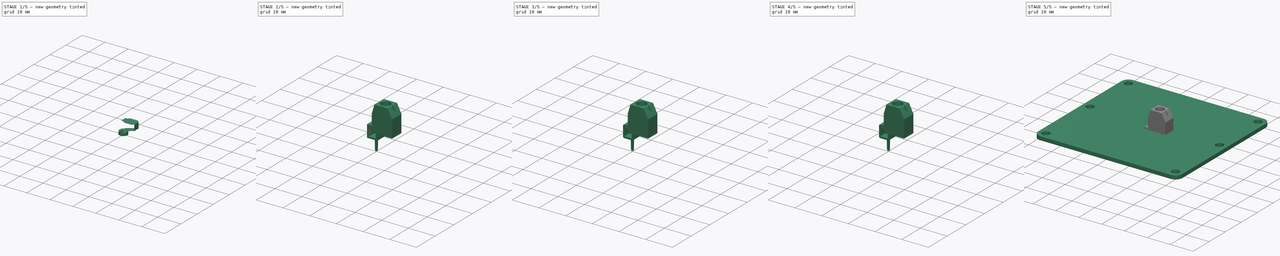
[diagram: build sequence overview — one tinted view per stage of 5, left to right]
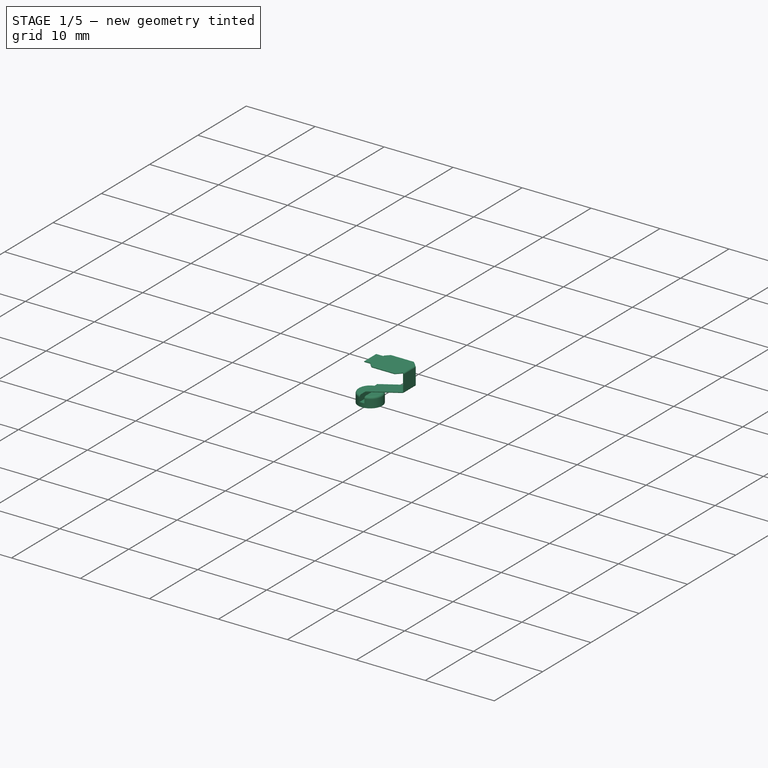
[diagram: stage 1 of 5 — iso view after this stage's code; geometry added in this stage tinted green]
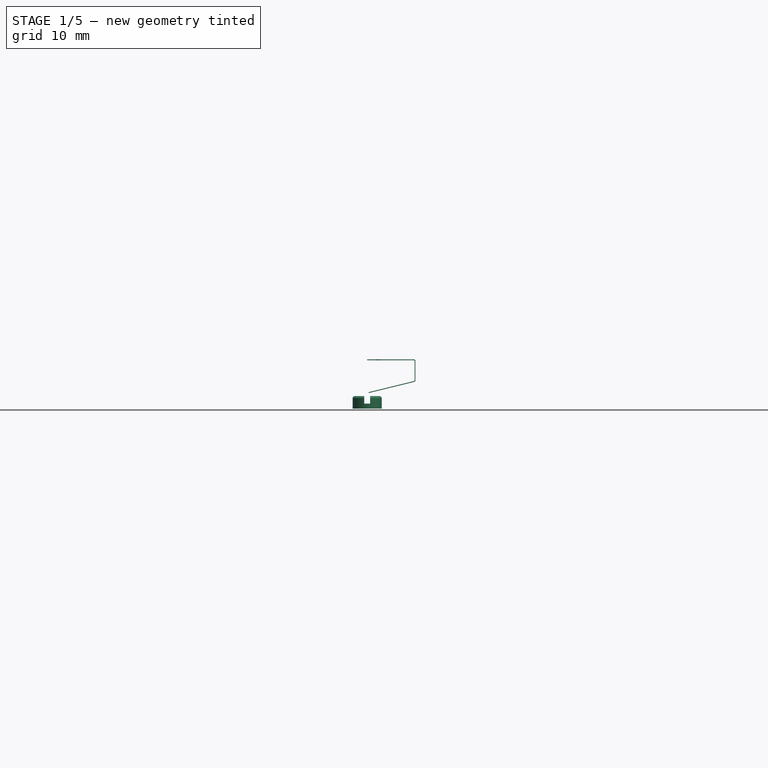
[diagram: stage 1 of 5 — front view after this stage's code; geometry added in this stage tinted green]
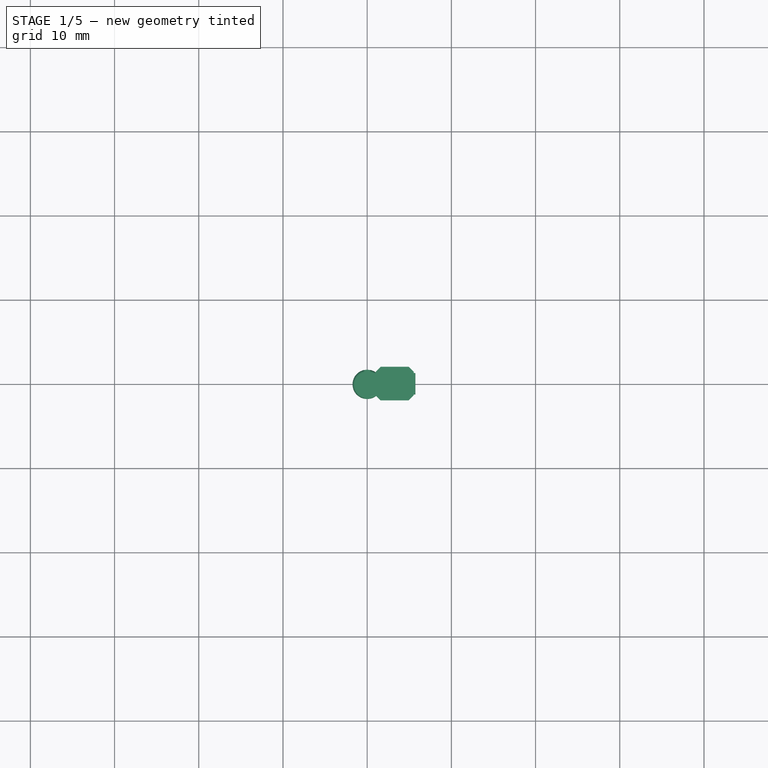
[diagram: stage 1 of 5 — top view after this stage's code; geometry added in this stage tinted green]
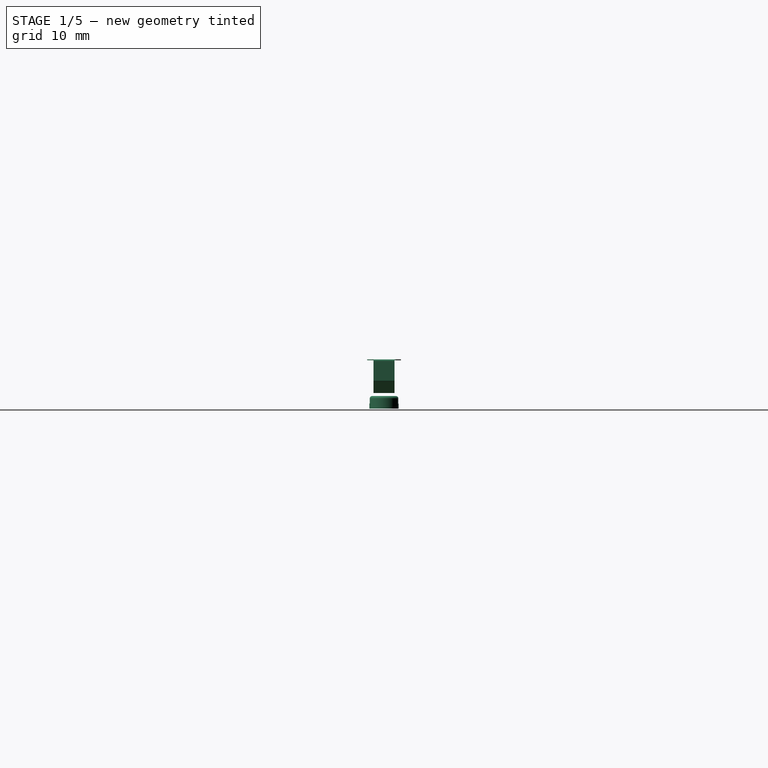
[diagram: stage 1 of 5 — right view after this stage's code; geometry added in this stage tinted green]
FCSTD DOCUMENT  (FreeCAD 0.22R37898 (Git))
Label: MKS ODrive Mini
License: All rights reserved
LicenseURL: http://en.wikipedia.org/wiki/All_rights_reserved
objects: Part::Feature×27, Sketcher::SketchObject×20, App::Part×10, PartDesign::Pad×9, PartDesign::Pocket×8, PartDesign::Fillet×8, PartDesign::Body×7, Part::FeaturePython×6, PartDesign::Draft×2, Part::Chamfer×2, PartDesign::Hole×1
note: 118 computed .brp shape members not serialized (recipe doc carries the construction recipe); baked Part::Feature solids carry a one-line shape summary decoded from their .brp

FEATURE [PartDesign::Body] Body005  label="Leg001"
  AllowCompound = false
  Group = -> [Sketch016,Pad005,Sketch019,Pad006,Draft001,Fillet004,Fillet005,Fillet006]
  Origin = -> Origin008
  Placement = pos=(3.2,-1e-15,3.3) rot=(0,0,-1;1.5708rad)
  Tip = -> Fillet006
FEATURE [Part::FeaturePython] BaseBend001  label="Spring002"  # WARN: FeaturePython — macro-defined, semantics opaque (R4)
  BendSide = 2
  BendSketch = -> Sketch013
  Placement = pos=(0,-1.25,5.8) rot=(0,0,1;0rad)
  length = 2.5
  radius = 0.1
  thickness = 0.1
FEATURE [Part::FeaturePython] Extend003  # WARN: FeaturePython — macro-defined, semantics opaque (R4)
  baseObject = -> BaseBend001 [Edge42]
  gap1 = 1
  gap2 = 0
  length = 0.75
FEATURE [Part::FeaturePython] Extend002  # WARN: FeaturePython — macro-defined, semantics opaque (R4)
  baseObject = -> Extend003 [Edge21]
  gap1 = 1
  gap2 = 0
  length = 0.75
FEATURE [Part::Chamfer] Chamfer001
  Base = -> Extend002
  EdgeLinks = -> Extend002 [Edge2,Edge8,Edge39,Edge45]
  Edges = 4 edges r=0.6: [Edge2,Edge8,Edge39,Edge45]
FEATURE [App::Part] Part004
  Group = -> [Sketch013,BaseBend001,Extend003,Extend002,Chamfer001]
  Origin = -> Origin011
  Placement = pos=(6,-7e-16,0) rot=(0,0,1;3.14159rad)
FEATURE [PartDesign::Pad] Pad008
  AllowMultiFace = false
  Direction = (1,1,1)
  Length = 1.5
  Length2 = 100
  Profile = -> Sketch017
  Refine = true
  Suppressed = false
  Type = 0
FEATURE [Sketcher::SketchObject] Sketch018  label="Sketch017"
  AttachmentSupport = -> [Pad008]
  FullyConstrained = false
  MapMode = 5
  Placement = pos=(0,0,1.5) rot=(0,0,1;0rad)
  sketch-geometry (4):
    g0: LineSegment StartX=-0.35 StartY=2 StartZ=0 EndX=0.35 EndY=2 EndZ=0
    g1: LineSegment StartX=0.35 StartY=2 StartZ=0 EndX=0.35 EndY=-2 EndZ=0
    g2: LineSegment StartX=0.35 StartY=-2 StartZ=0 EndX=-0.35 EndY=-2 EndZ=0
    g3: LineSegment StartX=-0.35 StartY=-2 StartZ=0 EndX=-0.35 EndY=2 EndZ=0
  constraints (11):
    c: Coincident(g0,g1)
    c: Coincident(g1,g2)
    c: Coincident(g2,g3)
    c: Coincident(g3,g0)
    c: Horizontal(g0)
    c: Horizontal(g2)
    c: Vertical(g1)
    c: Vertical(g3)
    c: Symmetric(g1,g0,g-1)
    c: DistanceX(g0,g0) = 0.7
    c: DistanceY(g1,g1) = 4
FEATURE [PartDesign::Pocket] Pocket007
  AllowMultiFace = false
  BaseFeature = -> Pad008
  Direction = (1,1,1)
  Length = 0.9
  Length2 = 100
  Profile = -> Sketch018
  Refine = true
  Suppressed = false
  Type = 0
FEATURE [PartDesign::Fillet] Fillet007
  Base = -> Pocket007 [Edge3,Edge7]
  BaseFeature = -> Pocket007
  Radius = 0.3
  SupportTransform = false
  Suppressed = false
  UseAllEdges = false
FEATURE [PartDesign::Body] Body006  label="Cap001"
  AllowCompound = false
  Group = -> [Sketch017,Pad008,Sketch018,Pocket007,Fillet007]
  Origin = -> Origin010
  Placement = pos=(3.47752,0,6.9297) rot=(0,0,1;0rad)
  Tip = -> Fillet007
FEATURE [App::Part] Part003  label="Teminal Block 1 pin001"
  Group = -> [Body004,Body005,Body006,Part004]
  Origin = -> Origin007
  Placement = pos=(1e-15,5,0) rot=(0,0,1;3.14159rad)
FEATURE [App::Part] Part002  label="Terminal block 2 pin"
  Group = -> [Part,Part003]
  Origin = -> Origin006
  Placement = pos=(-23.5,16,0) rot=(0,0,1;0rad)
FEATURE [Part::Feature] Part__Feature  label="Body"
  shape: bbox 12.7 x 19.5 x 21 mm, 80 faces (baked)
FEATURE [Part::Feature] Part__Feature001  label="Screw"
  Placement = pos=(38.4582,6.44094,17) rot=(0,0,1;0rad)
  shape: bbox 4.5 x 4.5 x 1 mm, 7 faces (baked)
FEATURE [Part::Feature] Part__Feature002  label="Screw001"
  Placement = pos=(38.4582,15.9409,17) rot=(0,0,1;0rad)
  shape: bbox 4.5 x 4.5 x 1 mm, 7 faces (baked)
FEATURE [Part::Feature] Part__Feature003  label="Block"
  Placement = pos=(-6,-20.4,6) rot=(0,0,1;0rad)
  shape: bbox 4 x 4 x 2 mm, 6 faces (baked)
FEATURE [Part::Feature] Part__Feature004  label="Block001"
  Placement = pos=(-5.8,-30.4,6) rot=(0,0,1;0rad)
  shape: bbox 4 x 4 x 2 mm, 6 faces (baked)
FEATURE [Part::Feature] Part__Feature005  label="T003"
  Placement = pos=(7.1,-5.35,-4.5) rot=(0,0,1;0rad)
  shape: bbox 0.8 x 1 x 5.5 mm, 10 faces (baked)
FEATURE [Part::Feature] Part__Feature006  label="T004"
  Placement = pos=(7.1,-14.85,-4.5) rot=(0,0,1;0rad)
  shape: bbox 0.8 x 1 x 5.5 mm, 10 faces (baked)
FEATURE [App::Part] BR1102V
  Group = -> [Part__Feature,Part__Feature001,Part__Feature002,Part__Feature003,Part__Feature004,Part__Feature005,Part__Feature006]
  Origin = -> Origin012
  Placement = pos=(0,0,0) rot=(0.57735,-0.57735,-0.57735;4.18879rad)
FEATURE [App::Part] BR11
  Group = -> [BR1102V]
  Origin = -> Origin013
  Placement = pos=(25.5,29,6.4e-15) rot=(0,-0.707107,-0.707107;3.14159rad)
FEATURE [Part::Feature] Part__Feature007  label="Body009"
  shape: bbox 12.7 x 29.1 x 21 mm, 104 faces (baked)
FEATURE [Part::Feature] Part__Feature008  label="Screw002"
  Placement = pos=(38.2582,6.39094,17) rot=(0,0,1;0rad)
  shape: bbox 4.5 x 4.5 x 1 mm, 7 faces (baked)
FEATURE [Part::Feature] Part__Feature009  label="Screw003"
  Placement = pos=(38.2582,15.8909,17) rot=(0,0,1;0rad)
  shape: bbox 4.5 x 4.5 x 1 mm, 7 faces (baked)
FEATURE [Part::Feature] Part__Feature010  label="Block002"
  Placement = pos=(-6,-20.4,6) rot=(0,0,1;0rad)
  shape: bbox 4 x 4 x 2 mm, 6 faces (baked)
FEATURE [Part::Feature] Part__Feature011  label="Block003"
  Placement = pos=(-5.8,-30.4,6) rot=(0,0,1;0rad)
  shape: bbox 4 x 4 x 2 mm, 6 faces (baked)
FEATURE [Part::Feature] Part__Feature012  label="T005"
  Placement = pos=(7.1,-5.35,-4.5) rot=(0,0,1;0rad)
  shape: bbox 0.8 x 1 x 5.5 mm, 10 faces (baked)
FEATURE [Part::Feature] Part__Feature013  label="T006"
  Placement = pos=(7.1,-14.85,-4.5) rot=(0,0,1;0rad)
  shape: bbox 0.8 x 1 x 5.5 mm, 10 faces (baked)
FEATURE [Part::Feature] Part__Feature014  label="Screw004"
  Placement = pos=(38.2582,-3.10906,17) rot=(0,0,1;0rad)
  shape: bbox 4.5 x 4.5 x 1 mm, 7 faces (baked)
FEATURE [Part::Feature] Part__Feature015  label="Body017"
  Placement = pos=(0,-9.5,0) rot=(0,0,1;0rad)
  shape: bbox 4 x 4 x 2 mm, 6 faces (baked)
FEATURE [Part::Feature] Part__Feature016  label="Body018"
  Placement = pos=(0,-9.5,0) rot=(0,0,1;0rad)
  shape: bbox 0.8 x 1 x 5.5 mm, 10 faces (baked)
FEATURE [App::Part] BR1103V
  Group = -> [Part__Feature007,Part__Feature008,Part__Feature009,Part__Feature010,Part__Feature011,Part__Feature012,Part__Feature013,Part__Feature014,Part__Feature015,Part__Feature016]
  Origin = -> Origin014
  Placement = pos=(19,0,0) rot=(0.57735,-0.57735,-0.57735;4.18879rad)
FEATURE [App::Part] BR012
  Group = -> [BR1103V]
  Origin = -> Origin015
  Placement = pos=(25.5,29,-6.4e-15) rot=(0,0.707107,0.707107;3.14159rad)
FEATURE [Part::Feature] Part__Feature020  label="220uF 50V001"
  Placement = pos=(-23,-4,1.5) rot=(0,0,1;4.71239rad)
  shape: bbox 15.87 x 10.73 x 10.51 mm, 145 faces (baked)
FEATURE [Part::Feature] Part__Feature021  label="220uF 50V002"
  Placement = pos=(-11.5,-4,1.5) rot=(0,0,1;4.71239rad)
  shape: bbox 15.87 x 10.73 x 10.51 mm, 145 faces (baked)
FEATURE [Part::Feature] Part__Feature022  label="220uF 50V003"
  Placement = pos=(0,-4,1.5) rot=(0,0,1;4.71239rad)
  shape: bbox 15.87 x 10.73 x 10.51 mm, 145 faces (baked)
FEATURE [Part::Feature] Part__Feature023  label="220uF 50V004"
  Placement = pos=(11.5,-4,1.5) rot=(0,0,1;4.71239rad)
  shape: bbox 15.87 x 10.73 x 10.51 mm, 145 faces (baked)
FEATURE [Part::Feature] Part__Feature024  label="220uF 50V005"
  Placement = pos=(23,-4,1.5) rot=(0,0,1;4.71239rad)
  shape: bbox 15.87 x 10.73 x 10.51 mm, 145 faces (baked)
FEATURE [Part::Feature] Part__Feature027  label="SM05B-GHS-TB"
  Placement = pos=(-16,-24.5,3.5) rot=(0,0,-1;3.14159rad)
  shape: bbox 9.5 x 4.3 x 4.85 mm, 244 faces, 8 solids (baked)
FEATURE [Part::Feature] Part__Feature028  label="SM05B-GHS-TB001"
  Placement = pos=(-4.5,-24.5,3.5) rot=(0,0,-1;3.14159rad)
  shape: bbox 9.5 x 4.3 x 4.85 mm, 244 faces, 8 solids (baked)
FEATURE [Part::Feature] Part__Feature029  label="SM06B-GHS-TB"
  Placement = pos=(8,-24.5,3.5) rot=(0,0,1;3.14159rad)
  shape: bbox 10.75 x 4.3 x 4.85 mm, 276 faces, 9 solids (baked)
FEATURE [Part::Feature] Part__Feature030  label="SM06B-GHS-TB001"
  Placement = pos=(20.5,-24.5,3.5) rot=(0,0,1;3.14159rad)
  shape: bbox 10.75 x 4.3 x 4.85 mm, 276 faces, 9 solids (baked)
FEATURE [Part::Feature] Part__Feature031  label="SM02B-GHS-TB"
  Placement = pos=(-27,-19,3.5) rot=(0,0,1;1.5708rad)
  shape: bbox 4.3 x 5.75 x 4.85 mm, 148 faces, 5 solids (baked)
FEATURE [App::Part] Part005  label="XDrive Mini"
  Group = -> [Part__Feature031,Part__Feature029,Part__Feature027,Part__Feature020,BR11,Part__Feature028,Part__Feature021,Part__Feature022,BR012,Part__Feature030,Part__Feature023,Part002,Body,Part__Feature024]
  Origin = -> Origin016
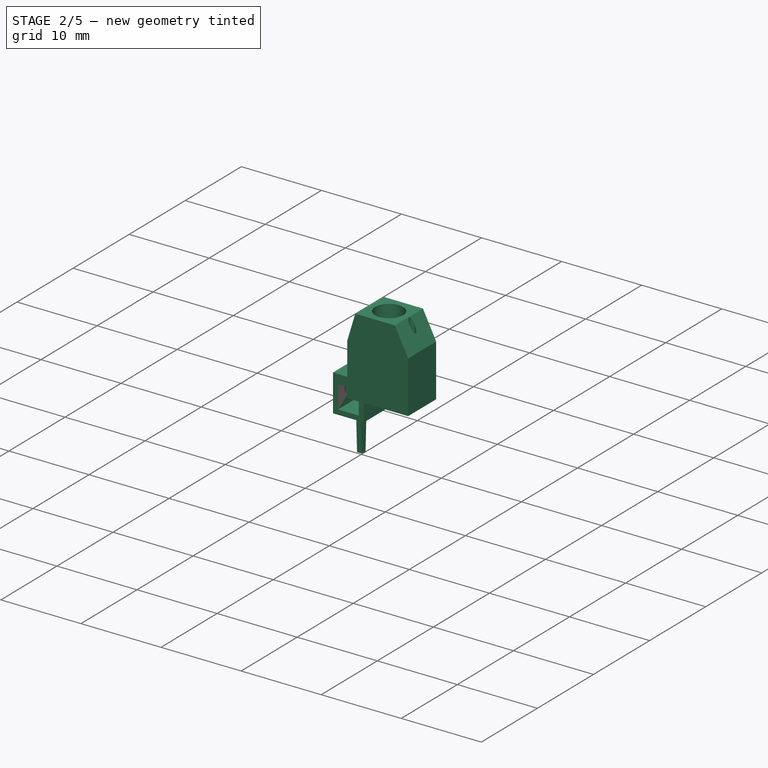
[diagram: stage 2 of 5 — iso view after this stage's code; geometry added in this stage tinted green]
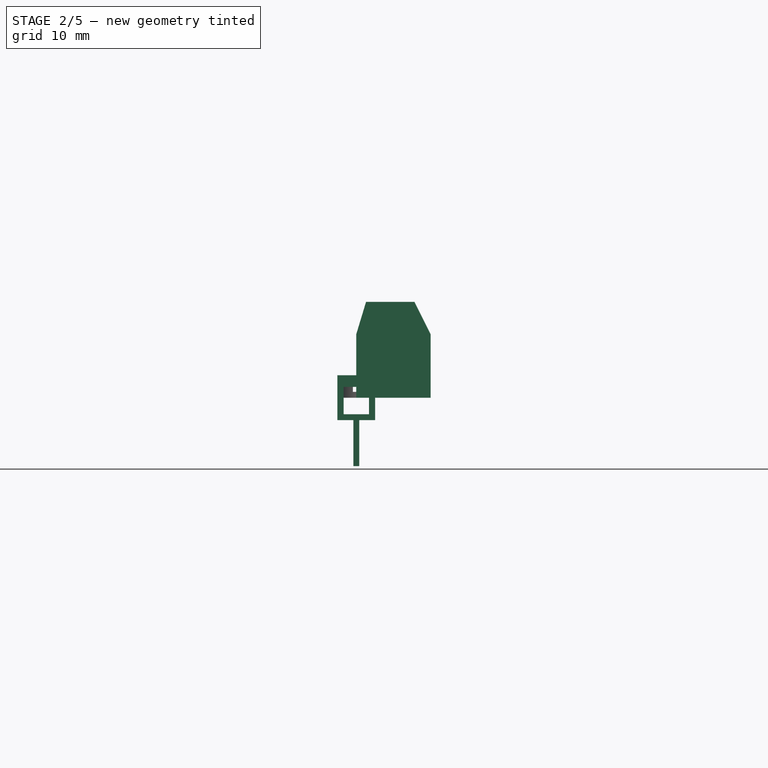
[diagram: stage 2 of 5 — front view after this stage's code; geometry added in this stage tinted green]
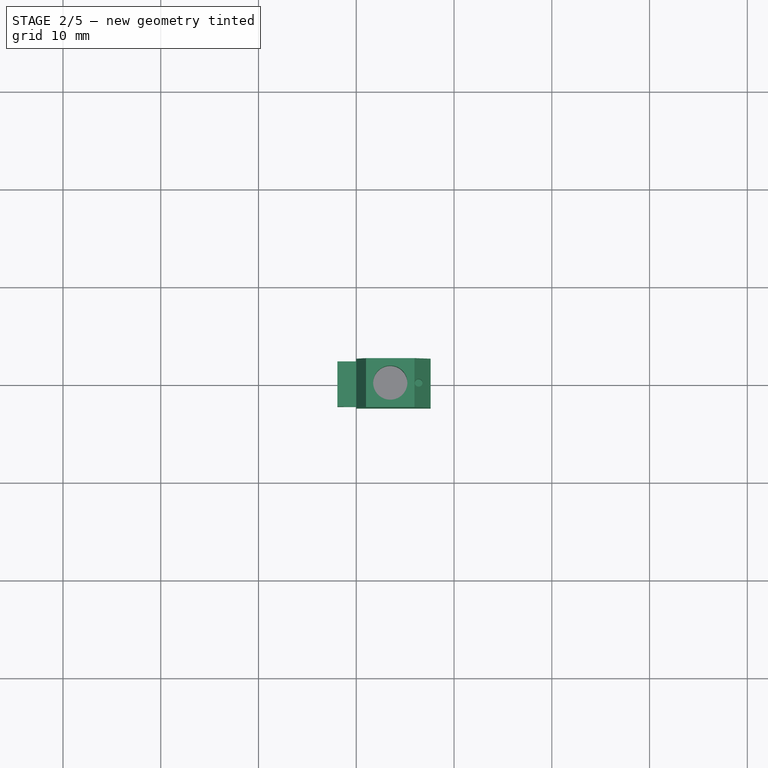
[diagram: stage 2 of 5 — top view after this stage's code; geometry added in this stage tinted green]
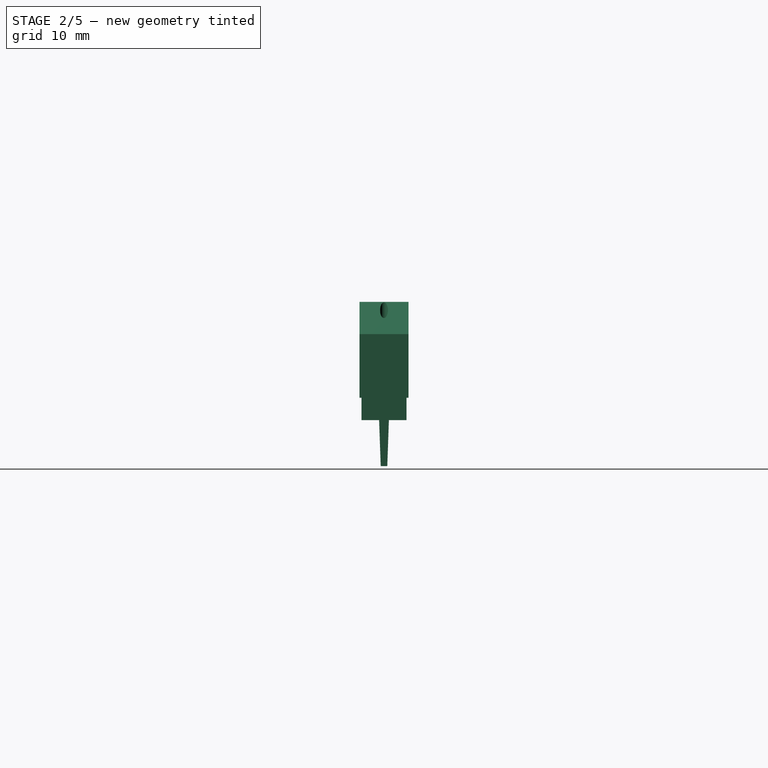
[diagram: stage 2 of 5 — right view after this stage's code; geometry added in this stage tinted green]
FEATURE [PartDesign::Body] Body003  label="Cap"
  AllowCompound = false
  Group = -> [Sketch009,Pad004,Sketch010,Pocket003,Fillet003]
  Origin = -> Origin004
  Placement = pos=(3.47752,0,6.9297) rot=(0,0,1;0rad)
  Tip = -> Fillet003
FEATURE [App::Part] Part  label="Teminal Block 1 pin"
  Group = -> [Body001,Body002,Body003,Part001]
  Origin = -> Origin001
  Placement = pos=(0,0,0) rot=(0,0,1;3.14159rad)
FEATURE [Sketcher::SketchObject] Sketch013  label="Sketch012"
  FullyConstrained = false
  MapMode = 5
  Placement = pos=(0,0,0) rot=(1,0,0;1.5708rad)
  sketch-geometry (3):
    g0: LineSegment StartX=0 StartY=0 StartZ=0 EndX=5.68 EndY=0 EndZ=0
    g1: LineSegment StartX=5.68 StartY=0 StartZ=0 EndX=5.68 EndY=-2.55 EndZ=0
    g2: LineSegment StartX=5.68 StartY=-2.55 StartZ=0 EndX=0.162763 EndY=-3.9 EndZ=0
  constraints (9):
    c: Coincident(g0,g-1)
    c: PointOnObject(g0,g-1)
    c: Coincident(g0,g1)
    c: Vertical(g1)
    c: Coincident(g1,g2)
    c: DistanceX(g0,g0) = 5.68
    c: DistanceY(g1,g1) = 2.55
    c: Distance(g2) = 5.68
    c: DistanceY(g2,g0) = 3.9
FEATURE [Sketcher::SketchObject] Sketch014  label="Sketch013"
  AttachmentSupport = -> [XZ_Plane008]
  FullyConstrained = false
  MapMode = 5
  Placement = pos=(0,0,0) rot=(1,0,0;1.5708rad)
  sketch-geometry (6):
    g0: LineSegment StartX=0 StartY=0 StartZ=0 EndX=7.6 EndY=0 EndZ=0
    g1: LineSegment StartX=7.6 StartY=0 StartZ=0 EndX=7.6 EndY=6.5 EndZ=0
    g2: LineSegment StartX=0 StartY=6.5 StartZ=0 EndX=0 EndY=0 EndZ=0
    g3: LineSegment StartX=7.6 StartY=6.5 StartZ=0 EndX=5.95 EndY=9.8 EndZ=0
    g4: LineSegment StartX=5.95 StartY=9.8 StartZ=0 EndX=1 EndY=9.8 EndZ=0
    g5: LineSegment StartX=1 StartY=9.8 StartZ=0 EndX=0 EndY=6.5 EndZ=0
  constraints (17):
    c: Coincident(g0,g1)
    c: Coincident(g2,g0)
    c: Horizontal(g0)
    c: Vertical(g1)
    c: Vertical(g2)
    c: Coincident(g0,g-1)
    c: DistanceX(g0,g0) = 7.6
    c: Coincident(g1,g3)
    c: Coincident(g3,g4)
    c: Coincident(g4,g5)
    c: Coincident(g5,g2)
    c: Horizontal(g4)
    c: Equal(g2,g1)
    c: DistanceY(g2,g2) = 6.5
    c: DistanceY(g2,g4) = 3.3
    c: DistanceX(g4,g4) = 4.95
    c: DistanceX(g2,g4) = 1
FEATURE [PartDesign::Pad] Pad007
  AllowMultiFace = false
  Direction = (1,1,1)
  Length = 5
  Length2 = 100
  Midplane = true
  Placement = pos=(0,0,0) rot=(1,0,0;1.5708rad)
  Profile = -> Sketch014
  Refine = true
  Suppressed = false
  Type = 0
FEATURE [Sketcher::SketchObject] Sketch015  label="Sketch014"
  AttachmentSupport = -> [Pad007]
  FullyConstrained = false
  MapMode = 5
  Placement = pos=(0,0,0) rot=(0.707107,0,-0.707107;3.14159rad)
  sketch-geometry (4):
    g0: LineSegment StartX=-1 StartY=0.5 StartZ=0 EndX=0 EndY=0.5 EndZ=0
    g1: LineSegment StartX=0 StartY=0.5 StartZ=0 EndX=0 EndY=-0.5 EndZ=0
    g2: LineSegment StartX=0 StartY=-0.5 StartZ=0 EndX=-1 EndY=-0.5 EndZ=0
    g3: LineSegment StartX=-1 StartY=-0.5 StartZ=0 EndX=-1 EndY=0.5 EndZ=0
  constraints (11):
    c: Coincident(g0,g1)
    c: Coincident(g1,g2)
    c: Coincident(g2,g3)
    c: Coincident(g3,g0)
    c: Horizontal(g0)
    c: Horizontal(g2)
    c: Vertical(g1)
    c: Vertical(g3)
    c: Symmetric(g0,g1,g-1)
    c: DistanceY(g1,g1) = 1
    c: DistanceX(g0,g0) = 1
FEATURE [PartDesign::Pocket] Pocket004
  AllowMultiFace = false
  BaseFeature = -> Pad007
  Direction = (1,1,1)
  Length = 3.75
  Length2 = 100
  Placement = pos=(0,0,0) rot=(1,0,0;1.5708rad)
  Profile = -> Sketch015
  Refine = true
  Suppressed = false
  Type = 0
FEATURE [Sketcher::SketchObject] Sketch011  label="Sketch010"
  AttachmentSupport = -> [Pocket004]
  ExternalGeometry = -> [Pocket004]
  FullyConstrained = false
  MapMode = 5
  Placement = pos=(0,0,0) rot=(0.707107,0,-0.707107;3.14159rad)
  sketch-geometry (4):
    g0: LineSegment StartX=-5.87 StartY=2 StartZ=0 EndX=-1 EndY=2 EndZ=0
    g1: LineSegment StartX=-1 StartY=2 StartZ=0 EndX=-1 EndY=-2 EndZ=0
    g2: LineSegment StartX=-1 StartY=-2 StartZ=0 EndX=-5.87 EndY=-2 EndZ=0
    g3: LineSegment StartX=-5.87 StartY=-2 StartZ=0 EndX=-5.87 EndY=2 EndZ=0
  constraints (11):
    c: Coincident(g0,g1)
    c: Coincident(g1,g2)
    c: Coincident(g2,g3)
    c: Coincident(g3,g0)
    c: Horizontal(g0)
    c: Horizontal(g2)
    c: Vertical(g3)
    c: Vertical(g-3,g0)
    c: Symmetric(g1,g0,g-1)
    c: DistanceY(g3,g3) = 4
    c: DistanceX(g0,g0) = 4.87
FEATURE [PartDesign::Pocket] Pocket005
  AllowMultiFace = false
  BaseFeature = -> Pocket004
  Direction = (1,1,1)
  Length = 6.8
  Length2 = 100
  Placement = pos=(0,0,0) rot=(1,0,0;1.5708rad)
  Profile = -> Sketch011
  Refine = true
  Suppressed = false
  Type = 0
FEATURE [Sketcher::SketchObject] Sketch012  label="Sketch011"
  AttachmentSupport = -> [Pocket005]
  ExternalGeometry = -> [Pocket005]
  FullyConstrained = false
  MapMode = 5
  Placement = pos=(0,4.3e-15,9.8) rot=(0,0,1;3.14159rad)
  sketch-geometry (2):
    g0: Circle CenterX=-3.475 CenterY=0 CenterZ=0 NormalX=0 NormalY=0 NormalZ=1 AngleXU=0 Radius=1.75
    g1: Circle CenterX=-6.375 CenterY=0 CenterZ=0 NormalX=0 NormalY=0 NormalZ=1 AngleXU=0 Radius=0.4
  constraints (5):
    c: Radius(g0) = 1.75
    c: Symmetric(g-3,g-4,g0)
    c: PointOnObject(g1,g-1)
    c: DistanceX(g1,g0) = 2.9
    c: Radius(g1) = 0.4
FEATURE [PartDesign::Pocket] Pocket006
  AllowMultiFace = false
  BaseFeature = -> Pocket005
  Direction = (1,1,1)
  Length = 5
  Length2 = 100
  Placement = pos=(0,0,0) rot=(1,0,0;1.5708rad)
  Profile = -> Sketch012
  Refine = true
  Suppressed = false
  Type = 0
FEATURE [PartDesign::Body] Body004  label="Case001"
  AllowCompound = false
  Group = -> [Sketch014,Pad007,Sketch015,Pocket004,Sketch011,Pocket005,Sketch012,Pocket006]
  Origin = -> Origin009
  Tip = -> Pocket006
FEATURE [Sketcher::SketchObject] Sketch016  label="Sketch015"
  AttachmentSupport = -> [XZ_Plane007]
  FullyConstrained = false
  MapMode = 5
  Placement = pos=(0,0,0) rot=(1,0,0;1.5708rad)
  sketch-geometry (8):
    g0: LineSegment StartX=-1.3 StartY=1.1 StartZ=0 EndX=1.3 EndY=1.1 EndZ=0
    g1: LineSegment StartX=1.3 StartY=1.1 StartZ=0 EndX=1.3 EndY=-1.7 EndZ=0
    g2: LineSegment StartX=1.3 StartY=-1.7 StartZ=0 EndX=-1.3 EndY=-1.7 EndZ=0
    g3: LineSegment StartX=-1.3 StartY=-1.7 StartZ=0 EndX=-1.3 EndY=1.1 EndZ=0
    g4: LineSegment StartX=-1.93 StartY=2.3 StartZ=0 EndX=1.93 EndY=2.3 EndZ=0
    g5: LineSegment StartX=1.93 StartY=2.3 StartZ=0 EndX=1.93 EndY=-2.3 EndZ=0
    g6: LineSegment StartX=1.93 StartY=-2.3 StartZ=0 EndX=-1.93 EndY=-2.3 EndZ=0
    g7: LineSegment StartX=-1.93 StartY=-2.3 StartZ=0 EndX=-1.93 EndY=2.3 EndZ=0
  constraints (22):
    c: Coincident(g0,g1)
    c: Coincident(g1,g2)
    c: Coincident(g2,g3)
    c: Coincident(g3,g0)
    c: Horizontal(g0)
    c: Vertical(g1)
    c: Vertical(g3)
    c: Coincident(g4,g5)
    c: Coincident(g5,g6)
    c: Coincident(g6,g7)
    c: Coincident(g7,g4)
    c: Horizontal(g4)
    c: Horizontal(g6)
    c: Vertical(g5)
    c: Vertical(g7)
    c: Symmetric(g4,g5,g-1)
    c: DistanceY(g5,g5) = 4.6
    c: DistanceX(g4,g4) = 3.86
    c: DistanceY(g5,g1) = 0.6
    c: DistanceX(g2,g2) = 2.6
    c: Symmetric(g1,g2,g-2)
    c: DistanceY(g3,g3) = 2.8
FEATURE [PartDesign::Pad] Pad005
  AllowMultiFace = false
  Direction = (1,1,1)
  Length = 4.6
  Length2 = 100
  Midplane = true
  Placement = pos=(0,0,0) rot=(1,0,0;1.5708rad)
  Profile = -> Sketch016
  Refine = true
  Suppressed = false
  Type = 0
FEATURE [Sketcher::SketchObject] Sketch017  label="Sketch016"
  AttachmentSupport = -> [XY_Plane010]
  FullyConstrained = false
  MapMode = 5
  sketch-geometry (1):
    g0: Circle CenterX=0 CenterY=0 CenterZ=0 NormalX=0 NormalY=0 NormalZ=1 AngleXU=0 Radius=1.735
  constraints (2):
    c: Coincident(g0,g-1)
    c: Radius(g0) = 1.735
FEATURE [Sketcher::SketchObject] Sketch019  label="Sketch018"
  AttachmentSupport = -> [Pad005]
  FullyConstrained = false
  MapMode = 5
  Placement = pos=(0,-1e-15,-2.3) rot=(1,0,0;3.14159rad)
  sketch-geometry (4):
    g0: LineSegment StartX=-0.3 StartY=0.5 StartZ=0 EndX=0.3 EndY=0.5 EndZ=0
    g1: LineSegment StartX=0.3 StartY=0.5 StartZ=0 EndX=0.3 EndY=-0.5 EndZ=0
    g2: LineSegment StartX=0.3 StartY=-0.5 StartZ=0 EndX=-0.3 EndY=-0.5 EndZ=0
    g3: LineSegment StartX=-0.3 StartY=-0.5 StartZ=0 EndX=-0.3 EndY=0.5 EndZ=0
  constraints (11):
    c: Coincident(g0,g1)
    c: Coincident(g1,g2)
    c: Coincident(g2,g3)
    c: Coincident(g3,g0)
    c: Horizontal(g0)
    c: Horizontal(g2)
    c: Vertical(g1)
    c: Vertical(g3)
    c: Symmetric(g1,g0,g-1)
    c: DistanceY(g1,g1) = 1
    c: DistanceX(g0,g0) = 0.6
FEATURE [PartDesign::Pad] Pad006
  AllowMultiFace = false
  BaseFeature = -> Pad005
  Direction = (1,1,1)
  Length = 4.7
  Length2 = 100
  Placement = pos=(0,0,0) rot=(1,0,0;1.5708rad)
  Profile = -> Sketch019
  Refine = true
  Suppressed = false
  Type = 0
FEATURE [PartDesign::Draft] Draft001
  Angle = 2
  Base = -> Pad006 [Face14,Face12]
  BaseFeature = -> Pad006
  NeutralPlane = -> Pad006 [Face6]
  Placement = pos=(0,0,0) rot=(1,0,0;1.5708rad)
  SupportTransform = false
  Suppressed = false
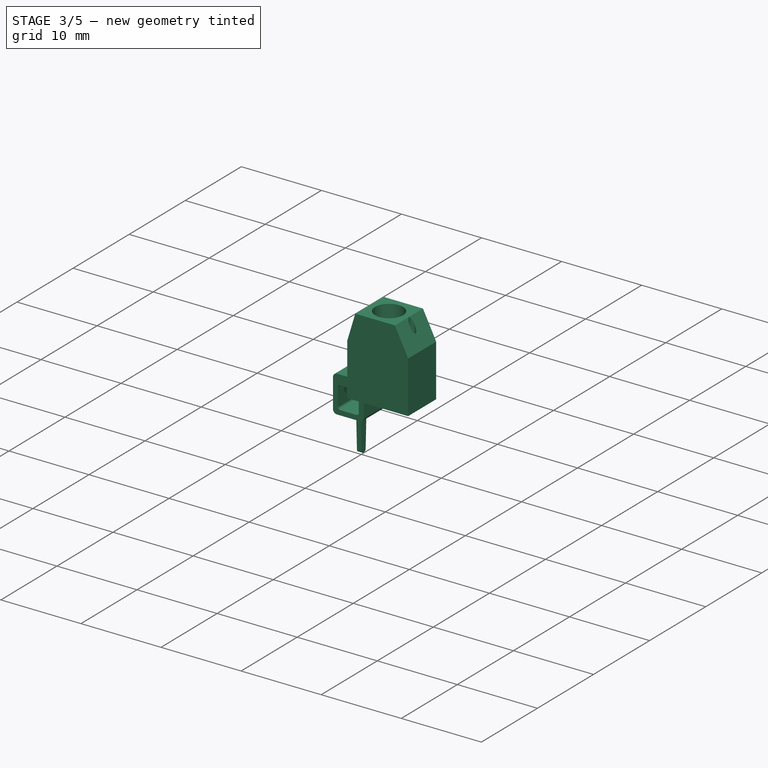
[diagram: stage 3 of 5 — iso view after this stage's code; geometry added in this stage tinted green]
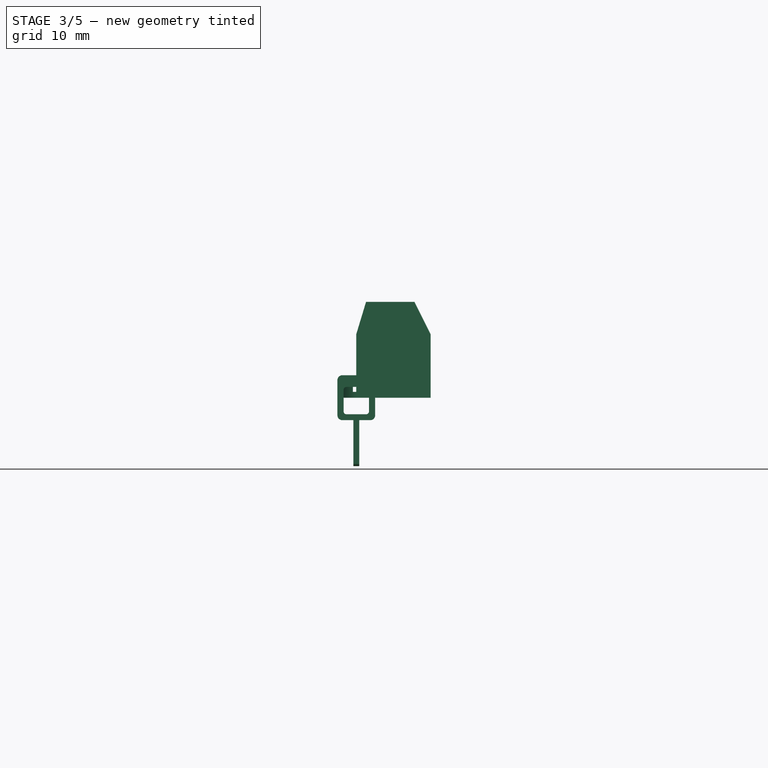
[diagram: stage 3 of 5 — front view after this stage's code; geometry added in this stage tinted green]
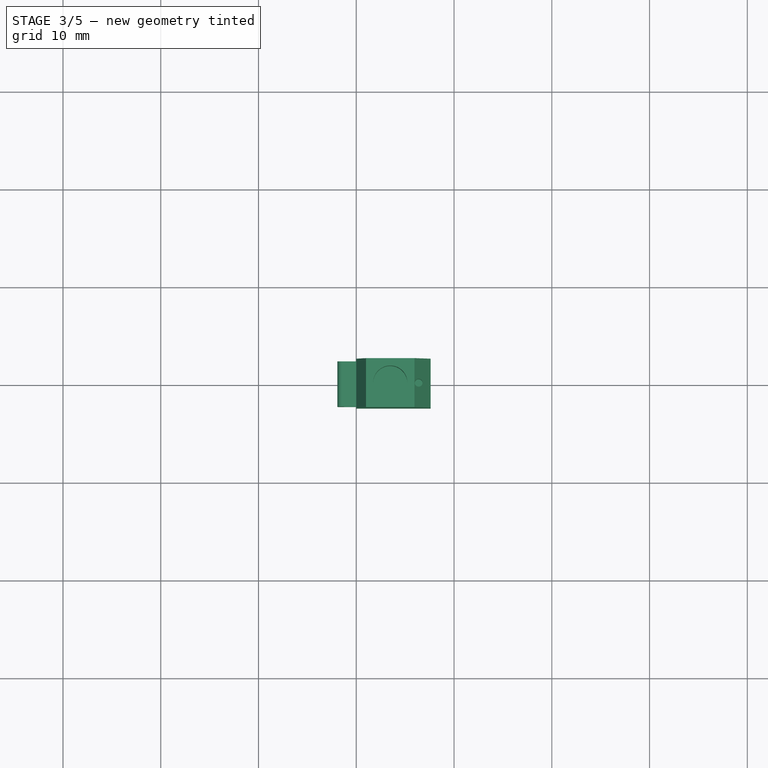
[diagram: stage 3 of 5 — top view after this stage's code; geometry added in this stage tinted green]
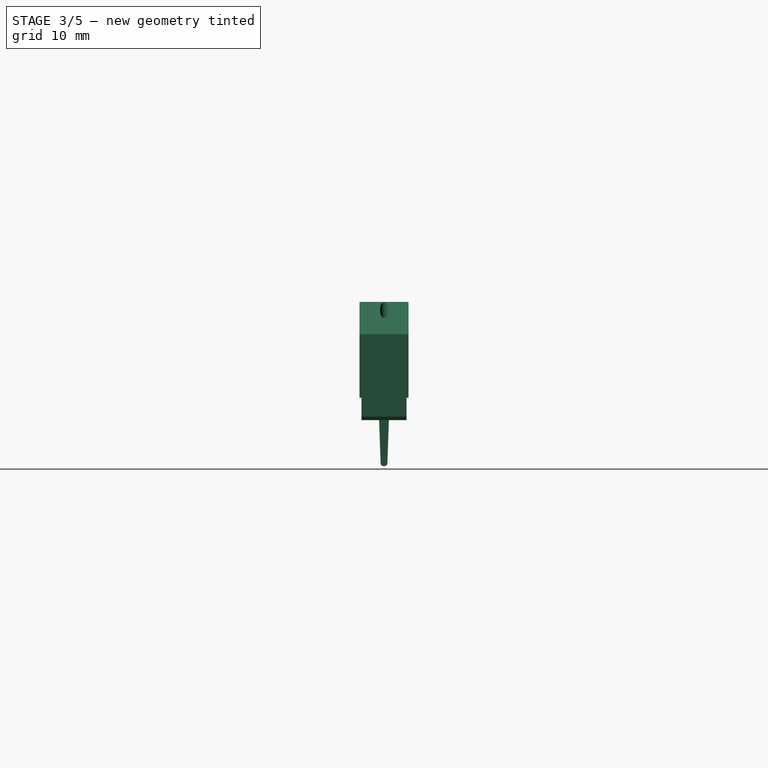
[diagram: stage 3 of 5 — right view after this stage's code; geometry added in this stage tinted green]
FEATURE [PartDesign::Body] Body002  label="Leg"
  AllowCompound = false
  Group = -> [Sketch006,Pad002,Sketch007,Pad003,Draft,Fillet,Fillet001,Fillet002]
  Origin = -> Origin003
  Placement = pos=(3.2,-1e-15,3.3) rot=(0,0,-1;1.5708rad)
  Tip = -> Fillet002
FEATURE [Sketcher::SketchObject] Sketch008  label="Sketch007"
  FullyConstrained = false
  MapMode = 5
  Placement = pos=(0,0,0) rot=(1,0,0;1.5708rad)
  sketch-geometry (3):
    g0: LineSegment StartX=0 StartY=0 StartZ=0 EndX=5.68 EndY=0 EndZ=0
    g1: LineSegment StartX=5.68 StartY=0 StartZ=0 EndX=5.68 EndY=-2.55 EndZ=0
    g2: LineSegment StartX=5.68 StartY=-2.55 StartZ=0 EndX=0.162763 EndY=-3.9 EndZ=0
  constraints (9):
    c: Coincident(g0,g-1)
    c: PointOnObject(g0,g-1)
    c: Coincident(g0,g1)
    c: Vertical(g1)
    c: Coincident(g1,g2)
    c: DistanceX(g0,g0) = 5.68
    c: DistanceY(g1,g1) = 2.55
    c: Distance(g2) = 5.68
    c: DistanceY(g2,g0) = 3.9
FEATURE [Part::FeaturePython] BaseBend  label="Spring001"  # WARN: FeaturePython — macro-defined, semantics opaque (R4)
  BendSide = 2
  BendSketch = -> Sketch008
  Placement = pos=(0,-1.25,5.8) rot=(0,0,1;0rad)
  length = 2.5
  radius = 0.1
  thickness = 0.1
FEATURE [Part::FeaturePython] Extend  # WARN: FeaturePython — macro-defined, semantics opaque (R4)
  baseObject = -> BaseBend [Edge42]
  gap1 = 1
  gap2 = 0
  length = 0.75
FEATURE [App::Part] Part001
  Group = -> [Sketch008,BaseBend,Extend,Extend001,Chamfer]
  Origin = -> Origin005
  Placement = pos=(6,-7e-16,0) rot=(0,0,1;3.14159rad)
FEATURE [Sketcher::SketchObject] Sketch009  label="Sketch008"
  AttachmentSupport = -> [XY_Plane004]
  FullyConstrained = false
  MapMode = 5
  sketch-geometry (1):
    g0: Circle CenterX=0 CenterY=0 CenterZ=0 NormalX=0 NormalY=0 NormalZ=1 AngleXU=0 Radius=1.735
  constraints (2):
    c: Coincident(g0,g-1)
    c: Radius(g0) = 1.735
FEATURE [PartDesign::Pad] Pad004
  AllowMultiFace = false
  Direction = (1,1,1)
  Length = 1.5
  Length2 = 100
  Profile = -> Sketch009
  Refine = true
  Suppressed = false
  Type = 0
FEATURE [Sketcher::SketchObject] Sketch010  label="Sketch009"
  AttachmentSupport = -> [Pad004]
  FullyConstrained = false
  MapMode = 5
  Placement = pos=(0,0,1.5) rot=(0,0,1;0rad)
  sketch-geometry (4):
    g0: LineSegment StartX=-0.35 StartY=2 StartZ=0 EndX=0.35 EndY=2 EndZ=0
    g1: LineSegment StartX=0.35 StartY=2 StartZ=0 EndX=0.35 EndY=-2 EndZ=0
    g2: LineSegment StartX=0.35 StartY=-2 StartZ=0 EndX=-0.35 EndY=-2 EndZ=0
    g3: LineSegment StartX=-0.35 StartY=-2 StartZ=0 EndX=-0.35 EndY=2 EndZ=0
  constraints (11):
    c: Coincident(g0,g1)
    c: Coincident(g1,g2)
    c: Coincident(g2,g3)
    c: Coincident(g3,g0)
    c: Horizontal(g0)
    c: Horizontal(g2)
    c: Vertical(g1)
    c: Vertical(g3)
    c: Symmetric(g1,g0,g-1)
    c: DistanceX(g0,g0) = 0.7
    c: DistanceY(g1,g1) = 4
FEATURE [PartDesign::Pocket] Pocket003
  AllowMultiFace = false
  BaseFeature = -> Pad004
  Direction = (1,1,1)
  Length = 0.9
  Length2 = 100
  Profile = -> Sketch010
  Refine = true
  Suppressed = false
  Type = 0
FEATURE [PartDesign::Fillet] Fillet003
  Base = -> Pocket003 [Edge3,Edge7]
  BaseFeature = -> Pocket003
  Radius = 0.3
  SupportTransform = false
  Suppressed = false
  UseAllEdges = false
FEATURE [PartDesign::Fillet] Fillet004
  Base = -> Draft001 [Edge36,Edge33]
  BaseFeature = -> Draft001
  Placement = pos=(0,0,0) rot=(1,0,0;1.5708rad)
  Radius = 0.3
  SupportTransform = false
  Suppressed = false
  UseAllEdges = false
FEATURE [PartDesign::Fillet] Fillet005
  Base = -> Fillet004 [Edge12,Edge23,Edge38,Edge15]
  BaseFeature = -> Fillet004
  Placement = pos=(0,0,0) rot=(1,0,0;1.5708rad)
  Radius = 0.5
  SupportTransform = false
  Suppressed = false
  UseAllEdges = false
FEATURE [PartDesign::Fillet] Fillet006
  Base = -> Fillet005 [Edge51,Edge52,Edge50,Edge49]
  BaseFeature = -> Fillet005
  Placement = pos=(0,0,0) rot=(1,0,0;1.5708rad)
  Radius = 0.3
  SupportTransform = false
  Suppressed = false
  UseAllEdges = false
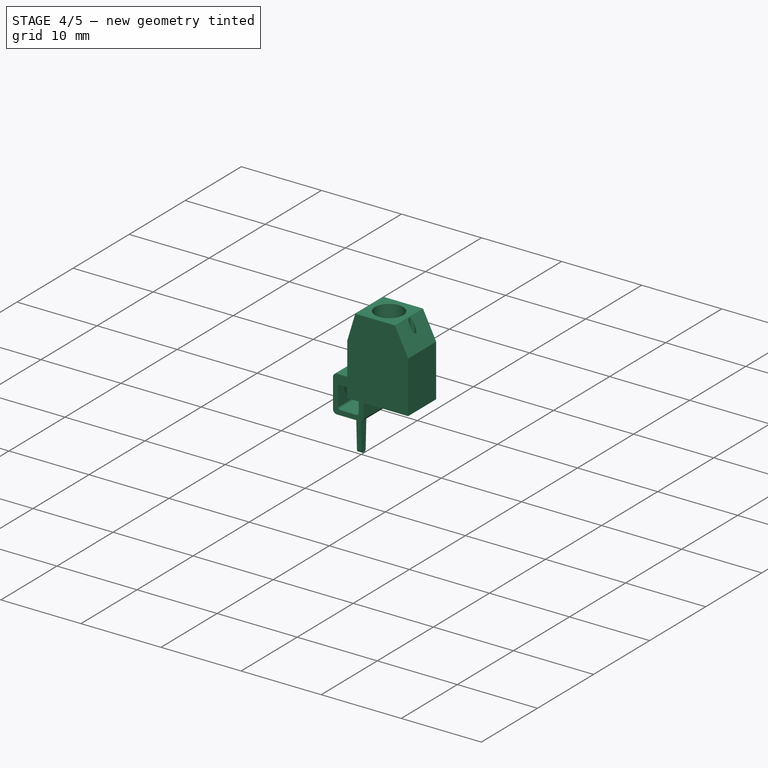
[diagram: stage 4 of 5 — iso view after this stage's code; geometry added in this stage tinted green]
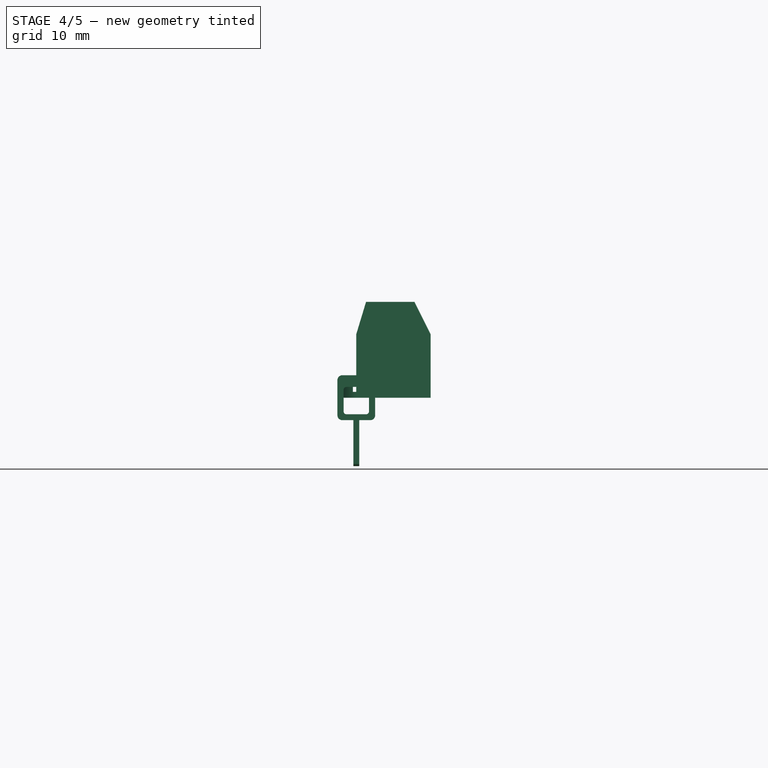
[diagram: stage 4 of 5 — front view after this stage's code; geometry added in this stage tinted green]
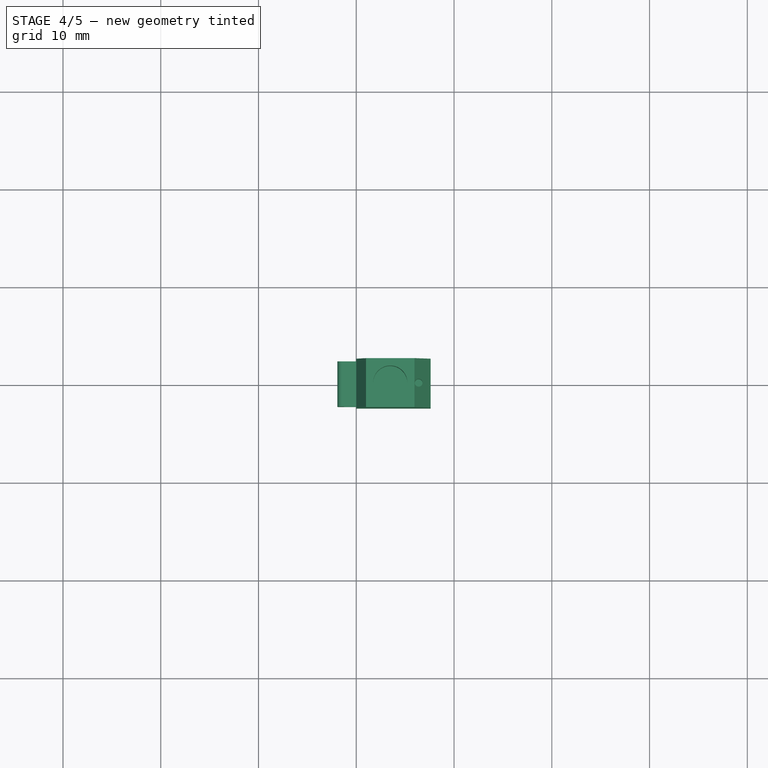
[diagram: stage 4 of 5 — top view after this stage's code; geometry added in this stage tinted green]
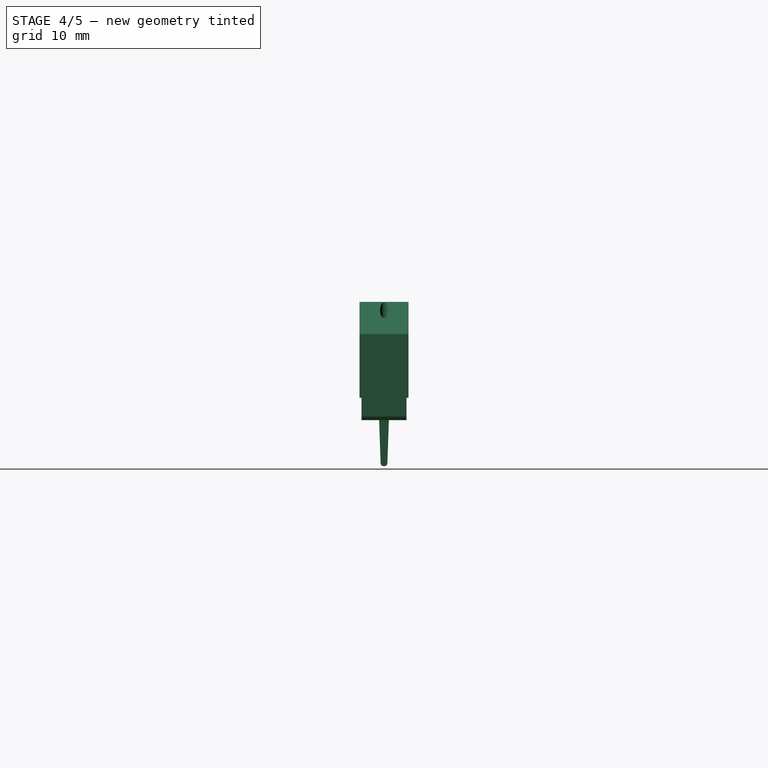
[diagram: stage 4 of 5 — right view after this stage's code; geometry added in this stage tinted green]
FEATURE [PartDesign::Body] Body001  label="Case"
  AllowCompound = false
  Group = -> [Sketch002,Pad001,Sketch003,Pocket,Sketch004,Pocket001,Sketch005,Pocket002]
  Origin = -> Origin002
  Tip = -> Pocket002
FEATURE [Sketcher::SketchObject] Sketch006  label="Sketch005"
  AttachmentSupport = -> [XZ_Plane003]
  FullyConstrained = false
  MapMode = 5
  Placement = pos=(0,0,0) rot=(1,0,0;1.5708rad)
  sketch-geometry (8):
    g0: LineSegment StartX=-1.3 StartY=1.1 StartZ=0 EndX=1.3 EndY=1.1 EndZ=0
    g1: LineSegment StartX=1.3 StartY=1.1 StartZ=0 EndX=1.3 EndY=-1.7 EndZ=0
    g2: LineSegment StartX=1.3 StartY=-1.7 StartZ=0 EndX=-1.3 EndY=-1.7 EndZ=0
    g3: LineSegment StartX=-1.3 StartY=-1.7 StartZ=0 EndX=-1.3 EndY=1.1 EndZ=0
    g4: LineSegment StartX=-1.93 StartY=2.3 StartZ=0 EndX=1.93 EndY=2.3 EndZ=0
    g5: LineSegment StartX=1.93 StartY=2.3 StartZ=0 EndX=1.93 EndY=-2.3 EndZ=0
    g6: LineSegment StartX=1.93 StartY=-2.3 StartZ=0 EndX=-1.93 EndY=-2.3 EndZ=0
    g7: LineSegment StartX=-1.93 StartY=-2.3 StartZ=0 EndX=-1.93 EndY=2.3 EndZ=0
  constraints (22):
    c: Coincident(g0,g1)
    c: Coincident(g1,g2)
    c: Coincident(g2,g3)
    c: Coincident(g3,g0)
    c: Horizontal(g0)
    c: Vertical(g1)
    c: Vertical(g3)
    c: Coincident(g4,g5)
    c: Coincident(g5,g6)
    c: Coincident(g6,g7)
    c: Coincident(g7,g4)
    c: Horizontal(g4)
    c: Horizontal(g6)
    c: Vertical(g5)
    c: Vertical(g7)
    c: Symmetric(g4,g5,g-1)
    c: DistanceY(g5,g5) = 4.6
    c: DistanceX(g4,g4) = 3.86
    c: DistanceY(g5,g1) = 0.6
    c: DistanceX(g2,g2) = 2.6
    c: Symmetric(g1,g2,g-2)
    c: DistanceY(g3,g3) = 2.8
FEATURE [PartDesign::Pad] Pad002
  AllowMultiFace = false
  Direction = (1,1,1)
  Length = 4.6
  Length2 = 100
  Midplane = true
  Placement = pos=(0,0,0) rot=(1,0,0;1.5708rad)
  Profile = -> Sketch006
  Refine = true
  Suppressed = false
  Type = 0
FEATURE [Sketcher::SketchObject] Sketch007  label="Sketch006"
  AttachmentSupport = -> [Pad002]
  FullyConstrained = false
  MapMode = 5
  Placement = pos=(0,-1e-15,-2.3) rot=(1,0,0;3.14159rad)
  sketch-geometry (4):
    g0: LineSegment StartX=-0.3 StartY=0.5 StartZ=0 EndX=0.3 EndY=0.5 EndZ=0
    g1: LineSegment StartX=0.3 StartY=0.5 StartZ=0 EndX=0.3 EndY=-0.5 EndZ=0
    g2: LineSegment StartX=0.3 StartY=-0.5 StartZ=0 EndX=-0.3 EndY=-0.5 EndZ=0
    g3: LineSegment StartX=-0.3 StartY=-0.5 StartZ=0 EndX=-0.3 EndY=0.5 EndZ=0
  constraints (11):
    c: Coincident(g0,g1)
    c: Coincident(g1,g2)
    c: Coincident(g2,g3)
    c: Coincident(g3,g0)
    c: Horizontal(g0)
    c: Horizontal(g2)
    c: Vertical(g1)
    c: Vertical(g3)
    c: Symmetric(g1,g0,g-1)
    c: DistanceY(g1,g1) = 1
    c: DistanceX(g0,g0) = 0.6
FEATURE [PartDesign::Pad] Pad003
  AllowMultiFace = false
  BaseFeature = -> Pad002
  Direction = (1,1,1)
  Length = 4.7
  Length2 = 100
  Placement = pos=(0,0,0) rot=(1,0,0;1.5708rad)
  Profile = -> Sketch007
  Refine = true
  Suppressed = false
  Type = 0
FEATURE [PartDesign::Draft] Draft
  Angle = 2
  Base = -> Pad003 [Face14,Face12]
  BaseFeature = -> Pad003
  NeutralPlane = -> Pad003 [Face6]
  Placement = pos=(0,0,0) rot=(1,0,0;1.5708rad)
  SupportTransform = false
  Suppressed = false
FEATURE [PartDesign::Fillet] Fillet
  Base = -> Draft [Edge36,Edge33]
  BaseFeature = -> Draft
  Placement = pos=(0,0,0) rot=(1,0,0;1.5708rad)
  Radius = 0.3
  SupportTransform = false
  Suppressed = false
  UseAllEdges = false
FEATURE [PartDesign::Fillet] Fillet001
  Base = -> Fillet [Edge12,Edge23,Edge38,Edge15]
  BaseFeature = -> Fillet
  Placement = pos=(0,0,0) rot=(1,0,0;1.5708rad)
  Radius = 0.5
  SupportTransform = false
  Suppressed = false
  UseAllEdges = false
FEATURE [Part::FeaturePython] Extend001  # WARN: FeaturePython — macro-defined, semantics opaque (R4)
  baseObject = -> Extend [Edge21]
  gap1 = 1
  gap2 = 0
  length = 0.75
FEATURE [Part::Chamfer] Chamfer
  Base = -> Extend001
  EdgeLinks = -> Extend001 [Edge2,Edge8,Edge39,Edge45]
  Edges = 4 edges r=0.6: [Edge2,Edge8,Edge39,Edge45]
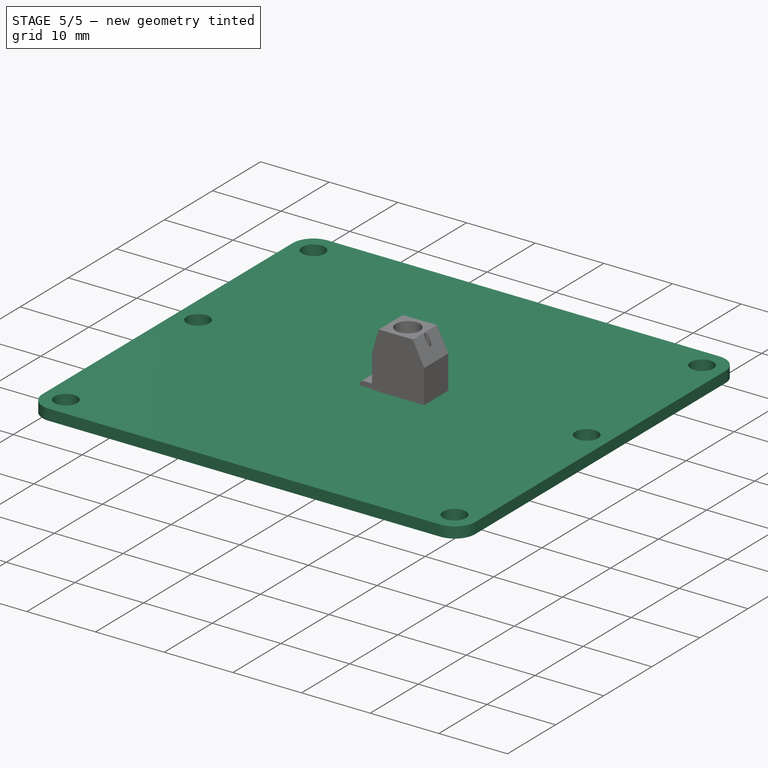
[diagram: stage 5 of 5 — iso view after this stage's code; geometry added in this stage tinted green]
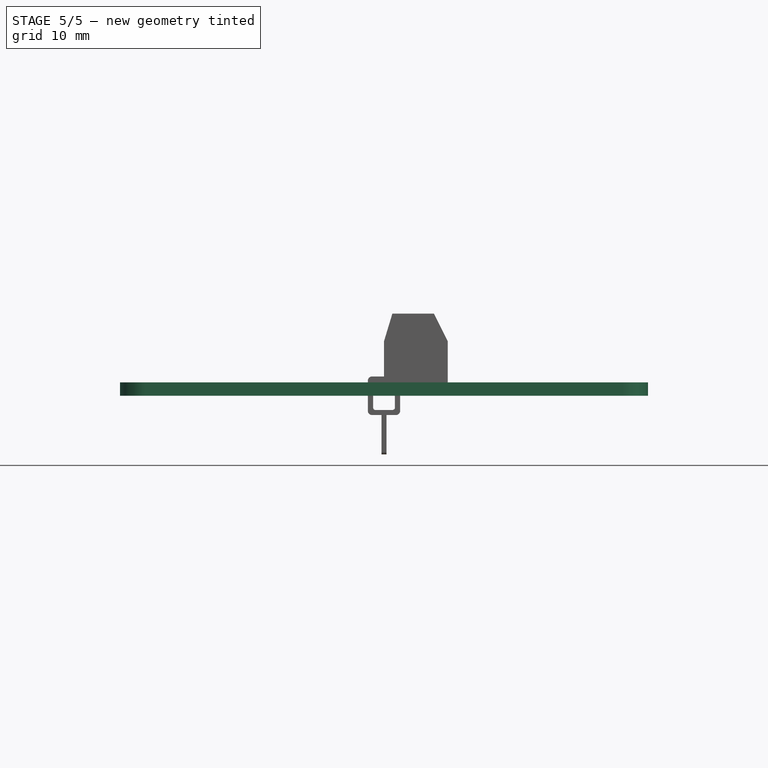
[diagram: stage 5 of 5 — front view after this stage's code; geometry added in this stage tinted green]
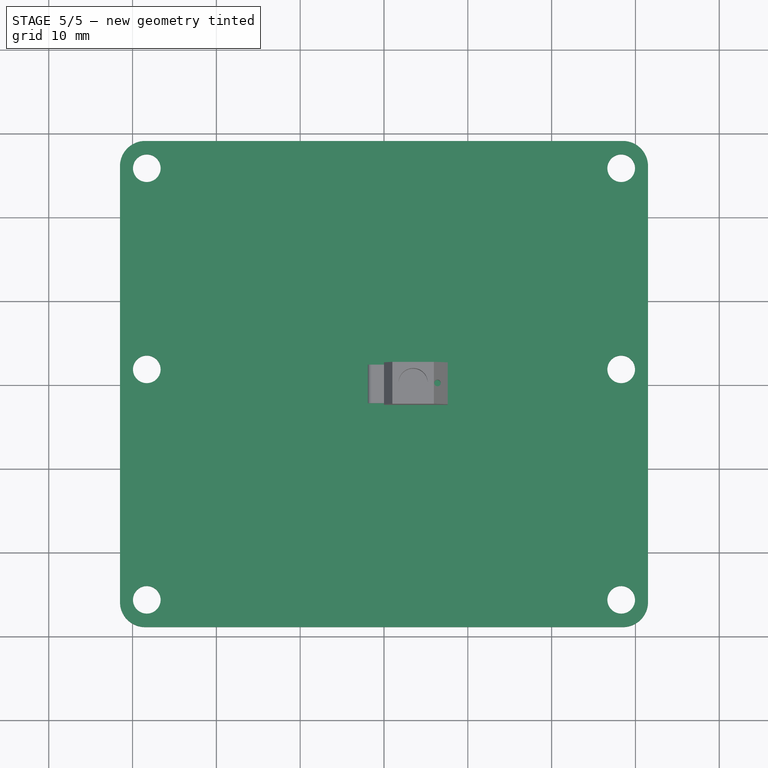
[diagram: stage 5 of 5 — top view after this stage's code; geometry added in this stage tinted green]
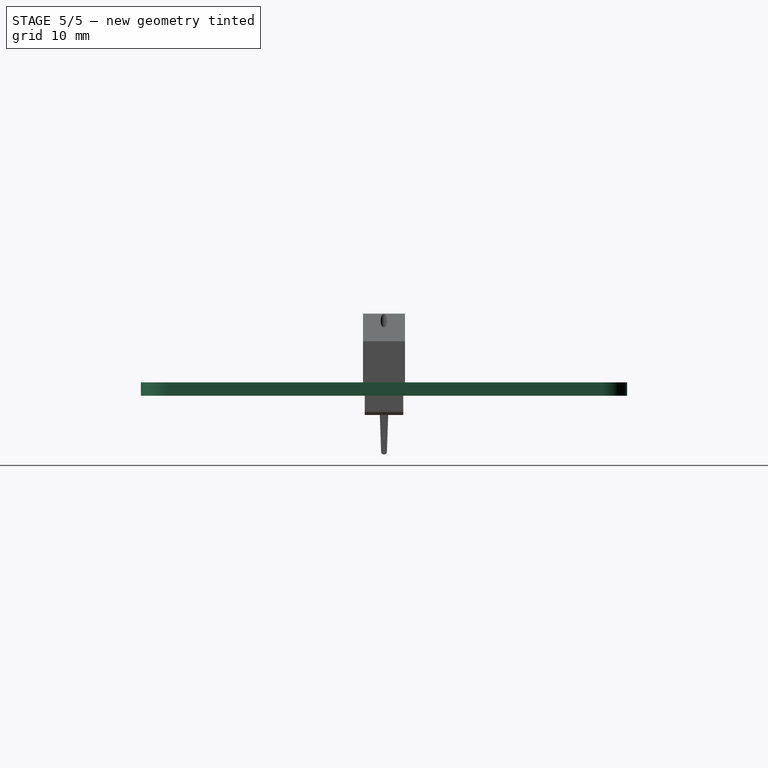
[diagram: stage 5 of 5 — right view after this stage's code; geometry added in this stage tinted green]
FEATURE [Sketcher::SketchObject] Sketch  label="PCB sketch"
  AttachmentSupport = -> [XY_Plane]
  FullyConstrained = true
  MapMode = 5
  sketch-geometry (10):
    g0: LineSegment StartX=31.5 StartY=-26 StartZ=0 EndX=31.5 EndY=26 EndZ=0
    g1: LineSegment StartX=28.5 StartY=29 StartZ=0 EndX=-28.5 EndY=29 EndZ=0
    g2: LineSegment StartX=-31.5 StartY=26 StartZ=0 EndX=-31.5 EndY=-26 EndZ=0
    g3: LineSegment StartX=-28.5 StartY=-29 StartZ=0 EndX=28.5 EndY=-29 EndZ=0
    g4: ArcOfCircle CenterX=28.5 CenterY=-26 CenterZ=0 NormalX=0 NormalY=0 NormalZ=1 AngleXU=0 Radius=3 StartAngle=4.71239 EndAngle=6.28319
    g5: ArcOfCircle CenterX=28.5 CenterY=26 CenterZ=0 NormalX=0 NormalY=0 NormalZ=1 AngleXU=0 Radius=3 StartAngle=-9e-16 EndAngle=1.5708
    g6: ArcOfCircle CenterX=-28.5 CenterY=26 CenterZ=0 NormalX=0 NormalY=0 NormalZ=1 AngleXU=0 Radius=3 StartAngle=1.5708 EndAngle=3.14159
    g7: ArcOfCircle CenterX=-28.5 CenterY=-26 CenterZ=0 NormalX=0 NormalY=0 NormalZ=1 AngleXU=0 Radius=3 StartAngle=3.14159 EndAngle=4.71239
    g8: GeomPoint X=31.5 Y=-29 Z=0
    g9: GeomPoint X=-31.5 Y=29 Z=0
  constraints (23):
    c: Tangent(g0,g4) = -1.5708
    c: Tangent(g0,g5) = -1.5708
    c: Tangent(g1,g5) = -1.5708
    c: Tangent(g1,g6) = -1.5708
    c: Tangent(g2,g6) = -1.5708
    c: Tangent(g2,g7) = -1.5708
    c: Tangent(g3,g7) = -1.5708
    c: Tangent(g3,g4) = -1.5708
    c: Vertical(g0)
    c: Vertical(g2)
    c: Horizontal(g1)
    c: Horizontal(g3)
    c: Equal(g4,g5)
    c: Equal(g5,g6)
    c: Equal(g6,g7)
    c: PointOnObject(g8,g0)
    c: PointOnObject(g8,g3)
    c: PointOnObject(g9,g1)
    c: PointOnObject(g9,g2)
    c: Radius(g4) = 3
    c: Symmetric(g4,g6,g-1)
    c: DistanceX(g2,g0) = 63
    c: DistanceY(g3,g1) = 58
FEATURE [Sketcher::SketchObject] Sketch001  label="Mounting holes sketch"
  AttachmentSupport = -> [XY_Plane]
  FullyConstrained = true
  MapMode = 5
  sketch-geometry (6):
    g0: Circle CenterX=28.3 CenterY=25.75 CenterZ=0 NormalX=0 NormalY=0 NormalZ=1 AngleXU=0 Radius=1.65
    g1: Circle CenterX=28.3 CenterY=1.75 CenterZ=0 NormalX=0 NormalY=0 NormalZ=1 AngleXU=0 Radius=1.65
    g2: Circle CenterX=28.3 CenterY=-25.75 CenterZ=0 NormalX=0 NormalY=0 NormalZ=1 AngleXU=0 Radius=1.65
    g3: Circle CenterX=-28.3 CenterY=-25.75 CenterZ=0 NormalX=0 NormalY=0 NormalZ=1 AngleXU=0 Radius=1.65
    g4: Circle CenterX=-28.3 CenterY=1.75 CenterZ=0 NormalX=0 NormalY=0 NormalZ=1 AngleXU=0 Radius=1.65
    g5: Circle CenterX=-28.3 CenterY=25.75 CenterZ=0 NormalX=0 NormalY=0 NormalZ=1 AngleXU=0 Radius=1.65
  constraints (14):
    c: Equal(g0,g5)
    c: Equal(g5,g4)
    c: Equal(g4,g1)
    c: Equal(g1,g2)
    c: Equal(g2,g3)
    c: Symmetric(g0,g5,g-2)
    c: DistanceY(g2,g1) = 27.5
    c: Diameter(g2) = 3.3
    c: DistanceX(g3,g2) = 56.6
    c: Symmetric(g2,g3,g-2)
    c: DistanceY(g1,g0) = 24
    c: Symmetric(g2,g0,g-1)
    c: Symmetric(g4,g1,g-2)
    c: Vertical(g1,g0)
FEATURE [PartDesign::Pad] Pad
  Direction = (0,0,1)
  Length = 1.6
  Length2 = 10
  Profile = -> Sketch
  ReferenceAxis = -> Sketch [N_Axis]
  Suppressed = false
  Type = 0
FEATURE [PartDesign::Hole] Hole
  BaseFeature = -> Pad
  CustomThreadClearance = 0
  Depth = 25
  DepthType = 0
  Diameter = 3.3
  DrillForDepth = false
  DrillPoint = 1
  DrillPointAngle = 118
  HoleCutCountersinkAngle = 90
  HoleCutCustomValues = false
  HoleCutDepth = 0
  HoleCutDiameter = 6.1
  HoleCutType = 0
  ModelThread = false
  Profile = -> Sketch001
  Reversed = true
  Suppressed = false
  Tapered = false
  TaperedAngle = 90
  ThreadClass = 0
  ThreadDepth = 25
  ThreadDepthType = 0
  ThreadDirection = 0
  ThreadFit = 0
  ThreadSize = 0
  ThreadType = 0
  Threaded = false
  UseCustomThreadClearance = false
FEATURE [PartDesign::Body] Body  label="PCB"
  AllowCompound = false
  Group = -> [Sketch,Sketch001,Pad,Hole]
  Origin = -> Origin
  Tip = -> Hole
FEATURE [Sketcher::SketchObject] Sketch002  label="Sketch"
  AttachmentSupport = -> [XZ_Plane002]
  FullyConstrained = false
  MapMode = 5
  Placement = pos=(0,0,0) rot=(1,0,0;1.5708rad)
  sketch-geometry (6):
    g0: LineSegment StartX=0 StartY=0 StartZ=0 EndX=7.6 EndY=0 EndZ=0
    g1: LineSegment StartX=7.6 StartY=0 StartZ=0 EndX=7.6 EndY=6.5 EndZ=0
    g2: LineSegment StartX=0 StartY=6.5 StartZ=0 EndX=0 EndY=0 EndZ=0
    g3: LineSegment StartX=7.6 StartY=6.5 StartZ=0 EndX=5.95 EndY=9.8 EndZ=0
    g4: LineSegment StartX=5.95 StartY=9.8 StartZ=0 EndX=1 EndY=9.8 EndZ=0
    g5: LineSegment StartX=1 StartY=9.8 StartZ=0 EndX=0 EndY=6.5 EndZ=0
  constraints (17):
    c: Coincident(g0,g1)
    c: Coincident(g2,g0)
    c: Horizontal(g0)
    c: Vertical(g1)
    c: Vertical(g2)
    c: Coincident(g0,g-1)
    c: DistanceX(g0,g0) = 7.6
    c: Coincident(g1,g3)
    c: Coincident(g3,g4)
    c: Coincident(g4,g5)
    c: Coincident(g5,g2)
    c: Horizontal(g4)
    c: Equal(g2,g1)
    c: DistanceY(g2,g2) = 6.5
    c: DistanceY(g2,g4) = 3.3
    c: DistanceX(g4,g4) = 4.95
    c: DistanceX(g2,g4) = 1
FEATURE [PartDesign::Pad] Pad001
  AllowMultiFace = false
  Direction = (1,1,1)
  Length = 5
  Length2 = 100
  Midplane = true
  Placement = pos=(0,0,0) rot=(1,0,0;1.5708rad)
  Profile = -> Sketch002
  Refine = true
  Suppressed = false
  Type = 0
FEATURE [Sketcher::SketchObject] Sketch003  label="Sketch002"
  AttachmentSupport = -> [Pad001]
  FullyConstrained = false
  MapMode = 5
  Placement = pos=(0,0,0) rot=(0.707107,0,-0.707107;3.14159rad)
  sketch-geometry (4):
    g0: LineSegment StartX=-1 StartY=0.5 StartZ=0 EndX=0 EndY=0.5 EndZ=0
    g1: LineSegment StartX=0 StartY=0.5 StartZ=0 EndX=0 EndY=-0.5 EndZ=0
    g2: LineSegment StartX=0 StartY=-0.5 StartZ=0 EndX=-1 EndY=-0.5 EndZ=0
    g3: LineSegment StartX=-1 StartY=-0.5 StartZ=0 EndX=-1 EndY=0.5 EndZ=0
  constraints (11):
    c: Coincident(g0,g1)
    c: Coincident(g1,g2)
    c: Coincident(g2,g3)
    c: Coincident(g3,g0)
    c: Horizontal(g0)
    c: Horizontal(g2)
    c: Vertical(g1)
    c: Vertical(g3)
    c: Symmetric(g0,g1,g-1)
    c: DistanceY(g1,g1) = 1
    c: DistanceX(g0,g0) = 1
FEATURE [PartDesign::Pocket] Pocket
  AllowMultiFace = false
  BaseFeature = -> Pad001
  Direction = (1,1,1)
  Length = 3.75
  Length2 = 100
  Placement = pos=(0,0,0) rot=(1,0,0;1.5708rad)
  Profile = -> Sketch003
  Refine = true
  Suppressed = false
  Type = 0
FEATURE [Sketcher::SketchObject] Sketch004  label="Sketch003"
  AttachmentSupport = -> [Pocket]
  ExternalGeometry = -> [Pocket]
  FullyConstrained = false
  MapMode = 5
  Placement = pos=(0,0,0) rot=(0.707107,0,-0.707107;3.14159rad)
  sketch-geometry (4):
    g0: LineSegment StartX=-5.87 StartY=2 StartZ=0 EndX=-1 EndY=2 EndZ=0
    g1: LineSegment StartX=-1 StartY=2 StartZ=0 EndX=-1 EndY=-2 EndZ=0
    g2: LineSegment StartX=-1 StartY=-2 StartZ=0 EndX=-5.87 EndY=-2 EndZ=0
    g3: LineSegment StartX=-5.87 StartY=-2 StartZ=0 EndX=-5.87 EndY=2 EndZ=0
  constraints (11):
    c: Coincident(g0,g1)
    c: Coincident(g1,g2)
    c: Coincident(g2,g3)
    c: Coincident(g3,g0)
    c: Horizontal(g0)
    c: Horizontal(g2)
    c: Vertical(g3)
    c: Vertical(g-3,g0)
    c: Symmetric(g1,g0,g-1)
    c: DistanceY(g3,g3) = 4
    c: DistanceX(g0,g0) = 4.87
FEATURE [PartDesign::Pocket] Pocket001
  AllowMultiFace = false
  BaseFeature = -> Pocket
  Direction = (1,1,1)
  Length = 6.8
  Length2 = 100
  Placement = pos=(0,0,0) rot=(1,0,0;1.5708rad)
  Profile = -> Sketch004
  Refine = true
  Suppressed = false
  Type = 0
FEATURE [Sketcher::SketchObject] Sketch005  label="Sketch004"
  AttachmentSupport = -> [Pocket001]
  ExternalGeometry = -> [Pocket001]
  FullyConstrained = false
  MapMode = 5
  Placement = pos=(0,4.3e-15,9.8) rot=(0,0,1;3.14159rad)
  sketch-geometry (2):
    g0: Circle CenterX=-3.475 CenterY=0 CenterZ=0 NormalX=0 NormalY=0 NormalZ=1 AngleXU=0 Radius=1.75
    g1: Circle CenterX=-6.375 CenterY=0 CenterZ=0 NormalX=0 NormalY=0 NormalZ=1 AngleXU=0 Radius=0.4
  constraints (5):
    c: Radius(g0) = 1.75
    c: Symmetric(g-3,g-4,g0)
    c: PointOnObject(g1,g-1)
    c: DistanceX(g1,g0) = 2.9
    c: Radius(g1) = 0.4
FEATURE [PartDesign::Pocket] Pocket002
  AllowMultiFace = false
  BaseFeature = -> Pocket001
  Direction = (1,1,1)
  Length = 5
  Length2 = 100
  Placement = pos=(0,0,0) rot=(1,0,0;1.5708rad)
  Profile = -> Sketch005
  Refine = true
  Suppressed = false
  Type = 0
FEATURE [PartDesign::Fillet] Fillet002
  Base = -> Fillet001 [Edge51,Edge52,Edge50,Edge49]
  BaseFeature = -> Fillet001
  Placement = pos=(0,0,0) rot=(1,0,0;1.5708rad)
  Radius = 0.3
  SupportTransform = false
  Suppressed = false
  UseAllEdges = false
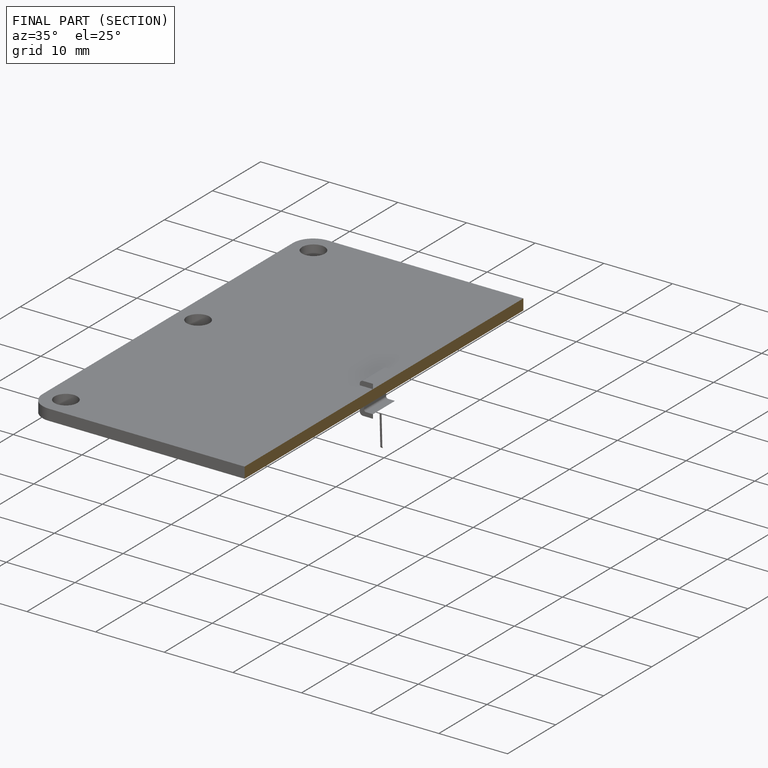
[diagram: finished part — half-section view (interior)]
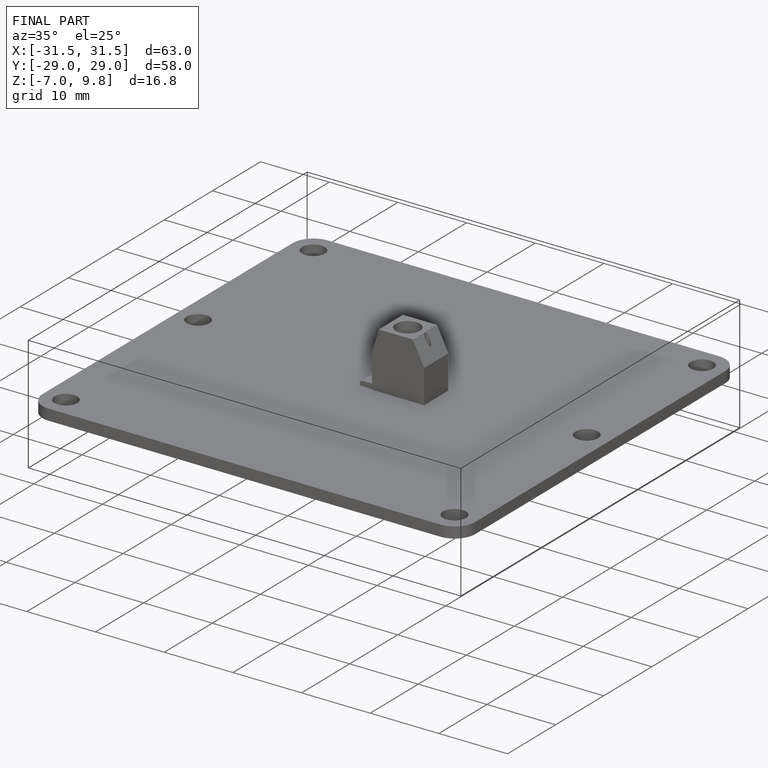
[diagram: finished part — iso view with bounding-box wireframe]
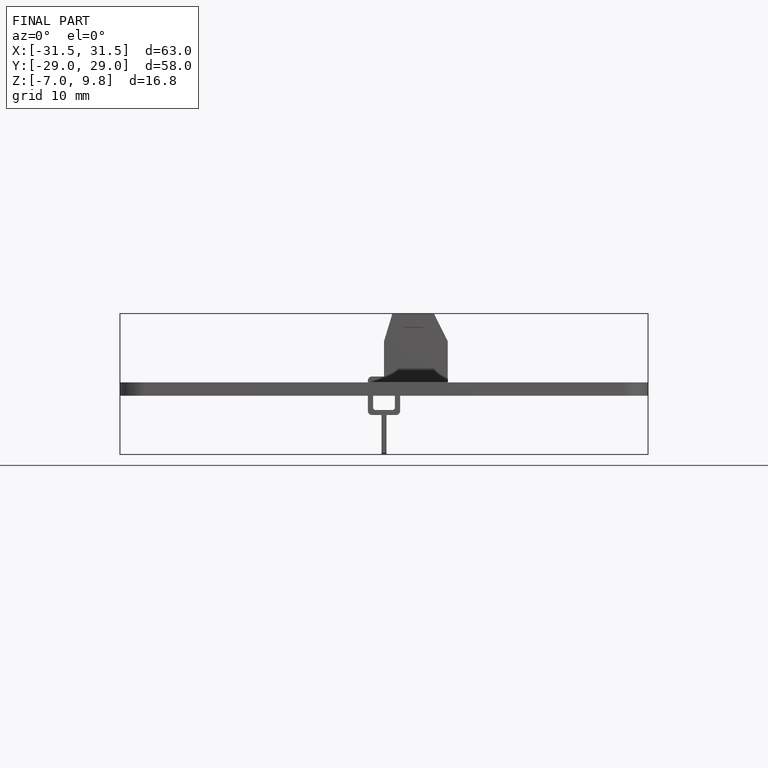
[diagram: finished part — front view with bounding-box wireframe]
